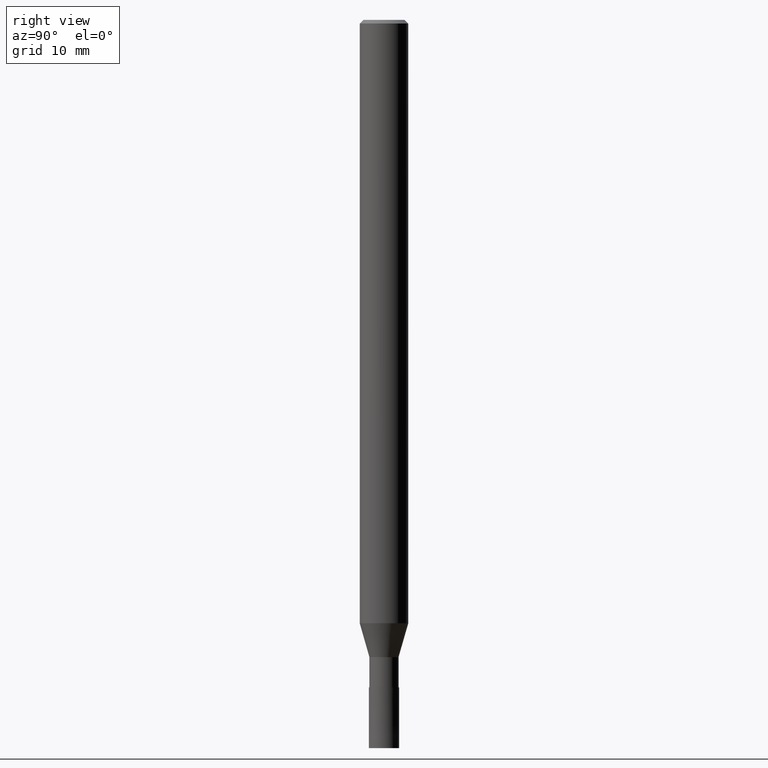
[diagram: clean part render]
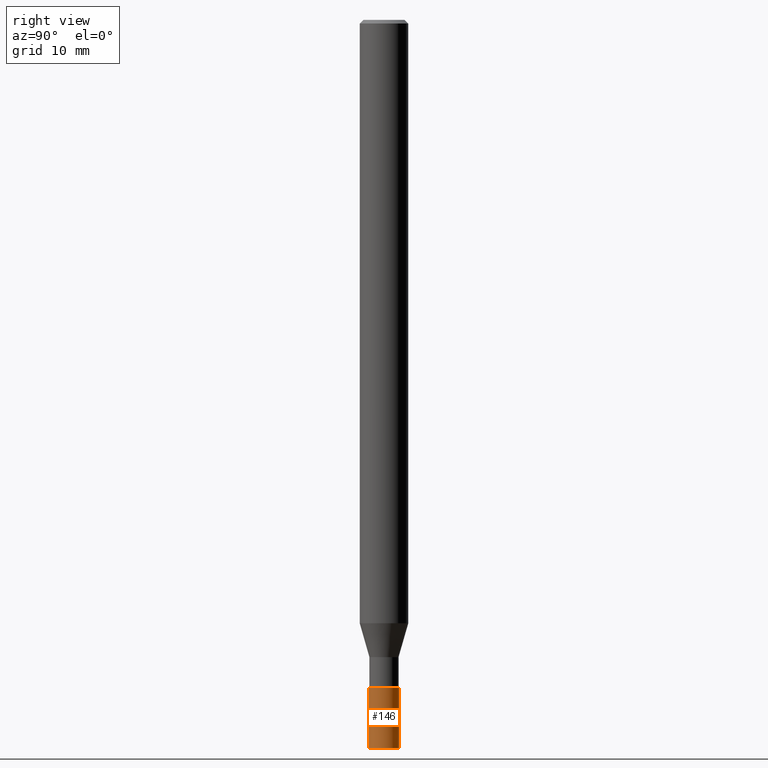
[diagram: same view with one face highlighted and labeled with its STEP entity id]
A machine part, right view. The second image highlights one B-rep face of the part: STEP entity #146.
In plain terms, the highlighted conical surface has half-angle 0.001 deg.
Its self-contained STEP definition (entity closure, byte-faithful):
#98=EDGE_CURVE('',#106,#118,#237,.T.);
#106=VERTEX_POINT('',#245);
#118=VERTEX_POINT('',#258);
#130=VERTEX_POINT('',#271);
#136=EDGE_CURVE('',#130,#200,#278,.T.);
#142=EDGE_CURVE('',#200,#118,#286,.T.);
#146=ADVANCED_FACE('',(#291),#292,.T.);
#194=EDGE_CURVE('',#106,#130,#345,.T.);
#200=VERTEX_POINT('',#352);
#237=CIRCLE('',#385,1.2499);
#245=CARTESIAN_POINT('',(0.0,1.2499,-55.0));
#258=CARTESIAN_POINT('',(1.53063548164259E-016,-1.2499,-55.0));
#271=CARTESIAN_POINT('',(0.0,1.25,-60.0));
#278=CIRCLE('',#434,1.25);
#286=LINE('',#444,#445);
#291=FACE_OUTER_BOUND('',#450,.T.);
#292=CONICAL_SURFACE('',#451,1.24995,1.99999999973311E-005);
#345=LINE('',#519,#520);
#352=CARTESIAN_POINT('',(1.53075794227797E-016,-1.25,-60.0));
#385=AXIS2_PLACEMENT_3D('',#557,#558,#559);
#434=AXIS2_PLACEMENT_3D('',#603,#604,#605);
#444=CARTESIAN_POINT('',(1.53069671196028E-016,-1.24995,-57.5));
#445=VECTOR('',#617,1.0);
#450=EDGE_LOOP('',(#627,#628,#629,#630));
#451=AXIS2_PLACEMENT_3D('',#631,#632,#633);
#519=CARTESIAN_POINT('',(-1.53069671196028E-016,1.24995,-57.5));
#520=VECTOR('',#690,1.0);
#557=CARTESIAN_POINT('',(0.0,0.0,-55.0));
#558=DIRECTION('',(0.0,0.0,-1.0));
#559=DIRECTION('',(0.0,1.0,0.0));
#603=CARTESIAN_POINT('',(0.0,0.0,-60.0));
#604=DIRECTION('',(0.0,0.0,-1.0));
#605=DIRECTION('',(0.0,1.0,0.0));
#617=DIRECTION('',(-2.44921270715464E-021,1.99999999959978E-005,0.9999999998));
#627=ORIENTED_EDGE('',*,*,#194,.F.);
#628=ORIENTED_EDGE('',*,*,#98,.T.);
#629=ORIENTED_EDGE('',*,*,#142,.F.);
#630=ORIENTED_EDGE('',*,*,#136,.F.);
#631=CARTESIAN_POINT('',(0.0,0.0,-57.5));
#632=DIRECTION('',(0.0,-0.0,-1.0));
#633=DIRECTION('',(0.0,1.0,0.0));
#690=DIRECTION('',(-2.44921270715464E-021,1.99999999959978E-005,-0.9999999998));